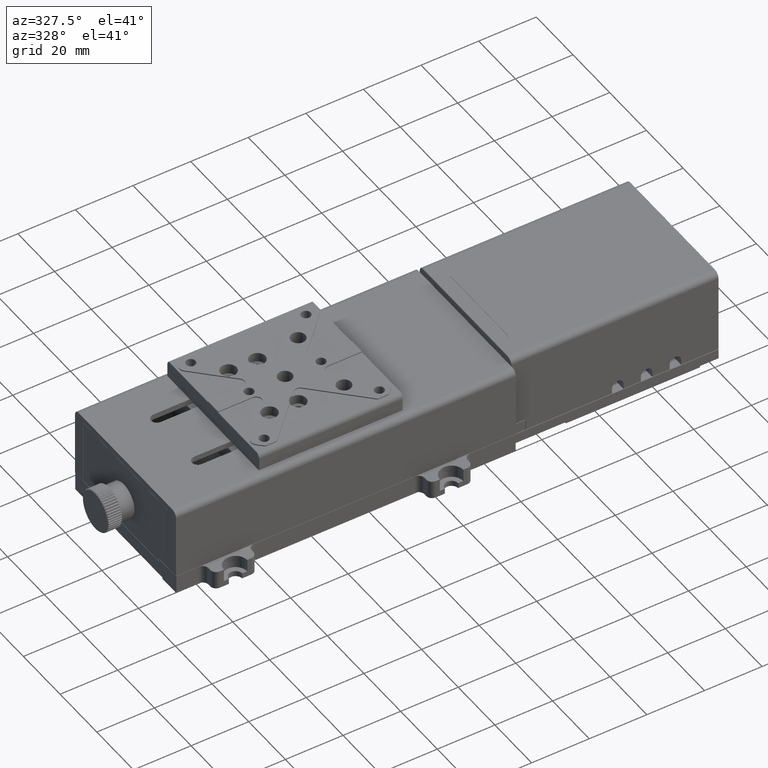
[diagram: clean part render]
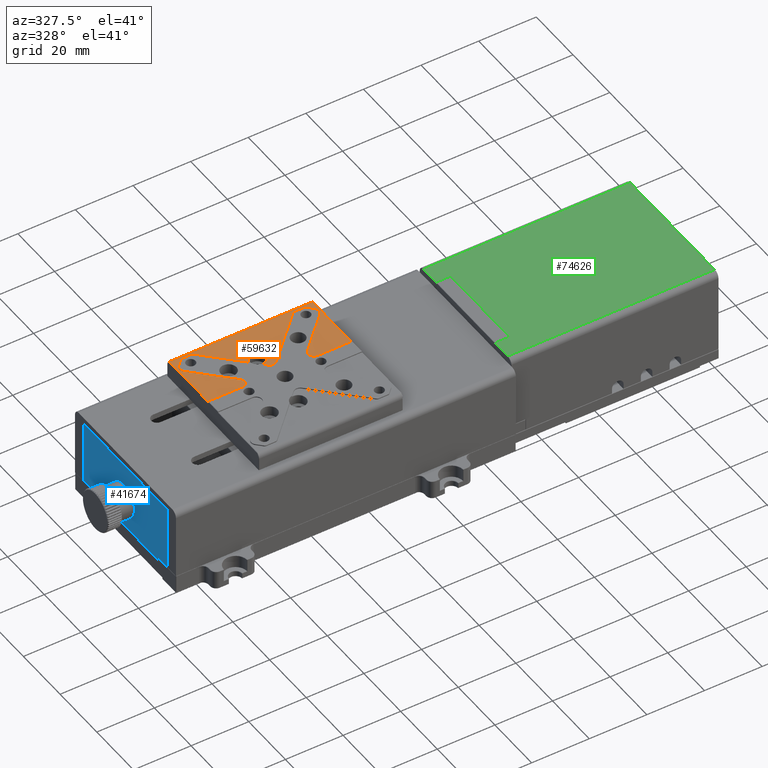
[diagram: same view with three faces highlighted in distinct colors, each labeled with its STEP entity id]
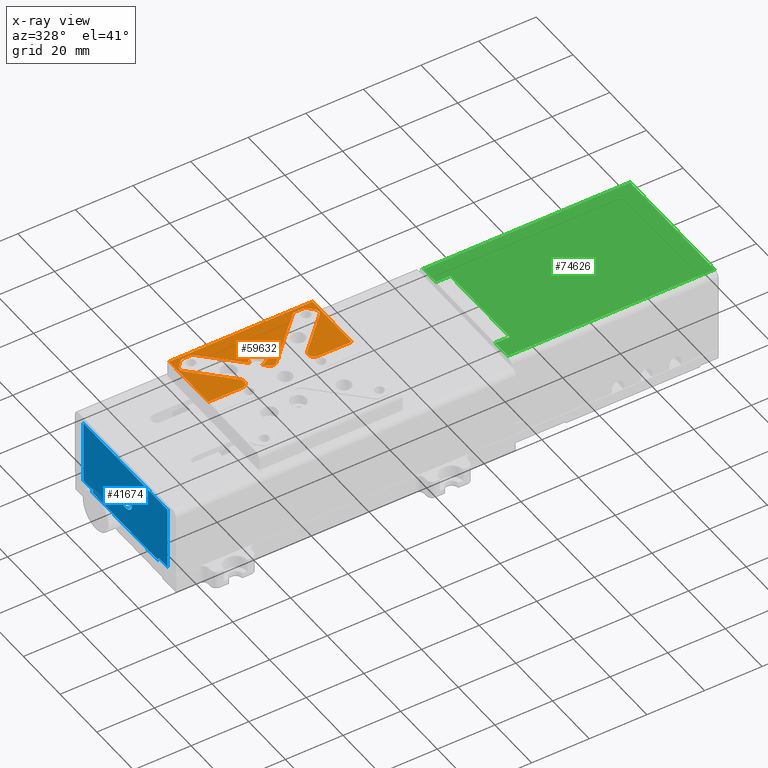
[diagram: x-ray of the same camera — body ghosted, the three highlighted faces saturated]
A machine part, auxiliary view with three faces highlighted in distinct colors.
The next image is the same camera in x-ray (body ghosted, the three faces saturated) — at least one of them is partly hidden behind the body in this view.
Their STEP definitions:

[orange] entity #59632 — the highlighted planar face has unit normal (0, 0, 1).
#13 = VERTEX_POINT ( 'NONE', #61773 ) ;
#254 = EDGE_CURVE ( 'NONE', #32556, #535, #66946, .T. ) ;
#363 = DIRECTION ( 'NONE',  ( 1.000000000000000000, 0.000000000000000000, 0.000000000000000000 ) ) ;
#535 = VERTEX_POINT ( 'NONE', #12200 ) ;
#1551 = EDGE_CURVE ( 'NONE', #535, #43986, #32637, .T. ) ;
#1763 = DIRECTION ( 'NONE',  ( 1.000000000000000000, 3.469446951953614189E-15, 0.000000000000000000 ) ) ;
#2162 = EDGE_CURVE ( 'NONE', #56444, #27756, #18939, .T. ) ;
#3137 = CARTESIAN_POINT ( 'NONE',  ( -61.47512690172040806, 46.50842696664169296, 32.69999999944575109 ) ) ;
#3236 = LINE ( 'NONE', #9735, #67392 ) ;
#3270 = DIRECTION ( 'NONE',  ( -2.775557561562890365E-16, 1.000000000000000000, 0.000000000000000000 ) ) ;
#3283 = ORIENTED_EDGE ( 'NONE', *, *, #33874, .T. ) ;
#4007 = LINE ( 'NONE', #20403, #14824 ) ;
#4023 = VERTEX_POINT ( 'NONE', #62094 ) ;
#4401 = EDGE_CURVE ( 'NONE', #72722, #48885, #58442, .T. ) ;
#4647 = DIRECTION ( 'NONE',  ( 1.000000000000000000, 0.000000000000000000, 0.000000000000000000 ) ) ;
#5609 = CARTESIAN_POINT ( 'NONE',  ( -16.51802012053379798, 46.96553374782829593, 32.69999999944575109 ) ) ;
#5983 = EDGE_CURVE ( 'NONE', #27218, #46094, #15421, .T. ) ;
#6828 = DIRECTION ( 'NONE',  ( -1.000000000000000000, 0.000000000000000000, 0.000000000000000000 ) ) ;
#6981 = VERTEX_POINT ( 'NONE', #24681 ) ;
#7345 = ORIENTED_EDGE ( 'NONE', *, *, #57116, .T. ) ;
#7606 = CARTESIAN_POINT ( 'NONE',  ( -11.93223368290686004, 46.96553374782829593, 32.69999999944575109 ) ) ;
#7733 = EDGE_CURVE ( 'NONE', #27756, #58400, #29007, .T. ) ;
#7833 = DIRECTION ( 'NONE',  ( 1.000000000000000000, 0.000000000000000000, 0.000000000000000000 ) ) ;
#7845 = PLANE ( 'NONE',  #38838 ) ;
#7867 = DIRECTION ( 'NONE',  ( 0.000000000000000000, 0.000000000000000000, -1.000000000000000000 ) ) ;
#8220 = DIRECTION ( 'NONE',  ( -0.7071067811865540120, 0.7071067811865410224, 0.000000000000000000 ) ) ;
#8703 = CARTESIAN_POINT ( 'NONE',  ( -45.38934046409369927, 30.42264052901525062, 32.69999999944575109 ) ) ;
#9002 = LINE ( 'NONE', #43234, #29584 ) ;
#9463 = VERTEX_POINT ( 'NONE', #80241 ) ;
#9517 = ORIENTED_EDGE ( 'NONE', *, *, #37796, .T. ) ;
#9735 = CARTESIAN_POINT ( 'NONE',  ( -36.47512690172035121, 71.50842696664180664, 32.69999999944575109 ) ) ;
#9782 = EDGE_CURVE ( 'NONE', #23003, #13330, #49859, .T. ) ;
#9907 = ORIENTED_EDGE ( 'NONE', *, *, #2162, .T. ) ;
#10266 = VERTEX_POINT ( 'NONE', #41877 ) ;
#10856 = VERTEX_POINT ( 'NONE', #82789 ) ;
#11076 = VERTEX_POINT ( 'NONE', #28997 ) ;
#11251 = CARTESIAN_POINT ( 'NONE',  ( -55.97512690172029437, 46.50842696664179954, 32.69999999944575109 ) ) ;
#12034 = CARTESIAN_POINT ( 'NONE',  ( -58.72512690172040095, 27.00842696664215126, 32.69999999944575109 ) ) ;
#12200 = CARTESIAN_POINT ( 'NONE',  ( -15.81091333934724830, 47.25842696664179954, 32.69999999944575109 ) ) ;
#12305 = VERTEX_POINT ( 'NONE', #18114 ) ;
#12412 = DIRECTION ( 'NONE',  ( 1.000000000000000000, 6.938893903907234689E-15, 0.000000000000000000 ) ) ;
#12637 = DIRECTION ( 'NONE',  ( 0.000000000000000000, 0.000000000000000000, 1.000000000000000000 ) ) ;
#12776 = CARTESIAN_POINT ( 'NONE',  ( -12.63934046409342038, 47.25842696664179954, 32.69999999944575109 ) ) ;
#13022 = VERTEX_POINT ( 'NONE', #47161 ) ;
#13330 = VERTEX_POINT ( 'NONE', #45786 ) ;
#13663 = DIRECTION ( 'NONE',  ( 0.000000000000000000, 0.000000000000000000, -1.000000000000000000 ) ) ;
#14300 = EDGE_CURVE ( 'NONE', #46094, #9463, #9002, .T. ) ;
#14435 = EDGE_CURVE ( 'NONE', #27138, #76380, #21193, .T. ) ;
#14824 = VECTOR ( 'NONE', #7833, 1000.000000000000000 ) ;
#15132 = AXIS2_PLACEMENT_3D ( 'NONE', #25644, #23194, #49647 ) ;
#15237 = DIRECTION ( 'NONE',  ( 1.000000000000000000, 0.000000000000000000, 0.000000000000000000 ) ) ;
#15397 = CARTESIAN_POINT ( 'NONE',  ( -32.31091333934710264, 31.17264052901499838, 32.69999999944575109 ) ) ;
#15415 = AXIS2_PLACEMENT_3D ( 'NONE', #79544, #13663, #40545 ) ;
#15421 = LINE ( 'NONE', #42697, #61613 ) ;
#16506 = EDGE_CURVE ( 'NONE', #4023, #13330, #79985, .T. ) ;
#17024 = CARTESIAN_POINT ( 'NONE',  ( -58.62512690172029295, 43.75842696664170006, 32.69999999944575109 ) ) ;
#17336 = AXIS2_PLACEMENT_3D ( 'NONE', #27385, #7867, #15237 ) ;
#17719 = DIRECTION ( 'NONE',  ( 1.000000000000000000, 0.000000000000000000, 0.000000000000000000 ) ) ;
#18096 = AXIS2_PLACEMENT_3D ( 'NONE', #65119, #65533, #59017 ) ;
#18114 = CARTESIAN_POINT ( 'NONE',  ( -57.31091333934720211, 42.34421340426859359, 32.69999999944575109 ) ) ;
#18397 = EDGE_CURVE ( 'NONE', #68459, #10856, #4007, .T. ) ;
#18541 = ORIENTED_EDGE ( 'NONE', *, *, #83983, .T. ) ;
#18939 = CIRCLE ( 'NONE', #60529, 2.750000000000002665 ) ;
#19560 = CIRCLE ( 'NONE', #15415, 2.000000000000001776 ) ;
#19832 = AXIS2_PLACEMENT_3D ( 'NONE', #38872, #44941, #4647 ) ;
#19942 = LINE ( 'NONE', #46389, #30465 ) ;
#20041 = CARTESIAN_POINT ( 'NONE',  ( -22.06091333934684684, 30.42264052901525062, 32.69999999944575109 ) ) ;
#20403 = CARTESIAN_POINT ( 'NONE',  ( -8.725126901720349437, 47.25842696664179954, 32.69999999944575109 ) ) ;
#21193 = CIRCLE ( 'NONE', #19832, 1.999999999999998224 ) ;
#21246 = ORIENTED_EDGE ( 'NONE', *, *, #64449, .F. ) ;
#21467 = ORIENTED_EDGE ( 'NONE', *, *, #18397, .T. ) ;
#21663 = CARTESIAN_POINT ( 'NONE',  ( -11.55355402646651974, 43.75842696664180664, 32.69999999944575109 ) ) ;
#22321 = VERTEX_POINT ( 'NONE', #8703 ) ;
#22596 = CARTESIAN_POINT ( 'NONE',  ( -33.47512690172035121, 35.40842696664179812, 32.69999999944575109 ) ) ;
#23003 = VERTEX_POINT ( 'NONE', #72257 ) ;
#23194 = DIRECTION ( 'NONE',  ( 0.000000000000000000, 0.000000000000000000, -1.000000000000000000 ) ) ;
#23260 = ORIENTED_EDGE ( 'NONE', *, *, #24549, .T. ) ;
#23518 = VECTOR ( 'NONE', #79138, 1000.000000000000000 ) ;
#24549 = EDGE_CURVE ( 'NONE', #13, #4023, #83335, .T. ) ;
#24678 = CARTESIAN_POINT ( 'NONE',  ( -58.72512690172040095, 27.00842696664215126, 32.69999999944575109 ) ) ;
#24681 = CARTESIAN_POINT ( 'NONE',  ( -38.94057637451610532, 34.97387643943775259, 32.69999999944575109 ) ) ;
#24790 = ORIENTED_EDGE ( 'NONE', *, *, #4401, .T. ) ;
#25644 = CARTESIAN_POINT ( 'NONE',  ( -36.22512690172035121, 35.40842696664179812, 32.69999999944575109 ) ) ;
#25876 = AXIS2_PLACEMENT_3D ( 'NONE', #78074, #76381, #43432 ) ;
#26044 = AXIS2_PLACEMENT_3D ( 'NONE', #78288, #40155, #12412 ) ;
#26915 = DIRECTION ( 'NONE',  ( 1.000000000000000000, 0.000000000000000000, 0.000000000000000000 ) ) ;
#26982 = ORIENTED_EDGE ( 'NONE', *, *, #53150, .T. ) ;
#27138 = VERTEX_POINT ( 'NONE', #20041 ) ;
#27218 = VERTEX_POINT ( 'NONE', #59930 ) ;
#27385 = CARTESIAN_POINT ( 'NONE',  ( -54.81091333934720211, 46.25842696664180664, 32.69999999944575109 ) ) ;
#27756 = VERTEX_POINT ( 'NONE', #22596 ) ;
#28160 = CARTESIAN_POINT ( 'NONE',  ( -8.825126901720350858, 43.75842696664180664, 32.69999999944575109 ) ) ;
#28855 = CIRCLE ( 'NONE', #26044, 0.9999999999999991118 ) ;
#28945 = VECTOR ( 'NONE', #41593, 1000.000000000000000 ) ;
#28997 = CARTESIAN_POINT ( 'NONE',  ( -57.31091333934730869, 45.17264052901479943, 32.69999999944575109 ) ) ;
#29007 = CIRCLE ( 'NONE', #15132, 2.750000000000002665 ) ;
#29584 = VECTOR ( 'NONE', #56660, 1000.000000000000000 ) ;
#29686 = DIRECTION ( 'NONE',  ( 0.7071067811865474617, -0.7071067811865474617, 0.000000000000000000 ) ) ;
#30037 = CARTESIAN_POINT ( 'NONE',  ( -35.13934046409325163, 31.17264052901499838, 32.69999999944575109 ) ) ;
#30465 = VECTOR ( 'NONE', #72816, 1000.000000000000114 ) ;
#30858 = VECTOR ( 'NONE', #363, 1000.000000000000000 ) ;
#31210 = DIRECTION ( 'NONE',  ( -0.7071067811865415775, -0.7071067811865535679, 0.000000000000000000 ) ) ;
#31238 = CARTESIAN_POINT ( 'NONE',  ( -36.47512690172035121, 27.00842696664174980, 32.69999999944575109 ) ) ;
#31673 = LINE ( 'NONE', #31238, #77680 ) ;
#32556 = VERTEX_POINT ( 'NONE', #5609 ) ;
#32637 = LINE ( 'NONE', #44363, #60640 ) ;
#32929 = CIRCLE ( 'NONE', #81338, 2.750000000000002665 ) ;
#33323 = CARTESIAN_POINT ( 'NONE',  ( -58.72512690172040095, 48.31199234192699521, 32.69999999944575109 ) ) ;
#33638 = CARTESIAN_POINT ( 'NONE',  ( -58.62512690172029295, 27.00842696664215126, 32.69999999944575109 ) ) ;
#33827 = CIRCLE ( 'NONE', #64252, 2.000000000000001776 ) ;
#33874 = EDGE_CURVE ( 'NONE', #6981, #56444, #32929, .T. ) ;
#33887 = DIRECTION ( 'NONE',  ( 0.000000000000000000, 0.000000000000000000, -1.000000000000000000 ) ) ;
#34191 = CARTESIAN_POINT ( 'NONE',  ( -36.65967742892429726, 32.69297749384600138, 32.69999999944575109 ) ) ;
#34312 = CARTESIAN_POINT ( 'NONE',  ( -58.72512690172040095, 49.25842696664179954, 32.69999999944575109 ) ) ;
#34576 = EDGE_CURVE ( 'NONE', #12305, #22321, #42560, .T. ) ;
#34664 = ORIENTED_EDGE ( 'NONE', *, *, #34576, .F. ) ;
#35543 = EDGE_CURVE ( 'NONE', #13022, #27138, #19942, .T. ) ;
#36873 = DIRECTION ( 'NONE',  ( 0.7071067811865474617, 0.7071067811865474617, 0.000000000000000000 ) ) ;
#37043 = EDGE_LOOP ( 'NONE', ( #23260, #49127, #56291, #72274, #34664, #26982, #21246, #68845, #21467, #9517, #85715, #3283, #9907, #83665, #48002, #57647, #18541, #83686, #73074, #46394, #73281, #24790, #7345, #77541, #65929, #37989, #52374, #54936, #80009 ) ) ;
#37120 = DIRECTION ( 'NONE',  ( 1.000000000000000000, 0.000000000000000000, 0.000000000000000000 ) ) ;
#37555 = CARTESIAN_POINT ( 'NONE',  ( -36.22512690172035121, 35.40842696664179812, 32.69999999944575109 ) ) ;
#37796 = EDGE_CURVE ( 'NONE', #10856, #10266, #42484, .T. ) ;
#37989 = ORIENTED_EDGE ( 'NONE', *, *, #41554, .F. ) ;
#38838 = AXIS2_PLACEMENT_3D ( 'NONE', #34312, #39102, #57106 ) ;
#38872 = CARTESIAN_POINT ( 'NONE',  ( -20.64669977697375103, 29.00842696664214770, 32.69999999944575109 ) ) ;
#39102 = DIRECTION ( 'NONE',  ( 0.000000000000000000, 0.000000000000000000, 1.000000000000000000 ) ) ;
#39607 = DIRECTION ( 'NONE',  ( 1.000000000000000000, 0.000000000000000000, 0.000000000000000000 ) ) ;
#40155 = DIRECTION ( 'NONE',  ( 0.000000000000000000, 0.000000000000000000, -1.000000000000000000 ) ) ;
#40545 = DIRECTION ( 'NONE',  ( 1.000000000000000000, 0.000000000000000000, 0.000000000000000000 ) ) ;
#41239 = EDGE_CURVE ( 'NONE', #6981, #10266, #74958, .T. ) ;
#41325 = DIRECTION ( 'NONE',  ( 0.000000000000000000, 0.000000000000000000, -1.000000000000000000 ) ) ;
#41554 = EDGE_CURVE ( 'NONE', #27218, #76380, #52776, .T. ) ;
#41593 = DIRECTION ( 'NONE',  ( -0.7071067811865540120, 0.7071067811865410224, 0.000000000000000000 ) ) ;
#41877 = CARTESIAN_POINT ( 'NONE',  ( -50.93223368290689734, 46.96553374782829593, 32.69999999944575109 ) ) ;
#42484 = CIRCLE ( 'NONE', #25876, 1.000000000000000888 ) ;
#42560 = LINE ( 'NONE', #3137, #56541 ) ;
#42697 = CARTESIAN_POINT ( 'NONE',  ( -8.825126901720350858, 43.75842696664180664, 32.69999999944575109 ) ) ;
#43234 = CARTESIAN_POINT ( 'NONE',  ( -8.825126901720350858, 48.31199234192699521, 32.69999999944575109 ) ) ;
#43432 = DIRECTION ( 'NONE',  ( 1.000000000000000000, 0.000000000000000000, 0.000000000000000000 ) ) ;
#43986 = VERTEX_POINT ( 'NONE', #12776 ) ;
#44363 = CARTESIAN_POINT ( 'NONE',  ( -8.725126901720349437, 47.25842696664179954, 32.69999999944575109 ) ) ;
#44567 = EDGE_CURVE ( 'NONE', #65985, #68459, #75443, .T. ) ;
#44637 = DIRECTION ( 'NONE',  ( -1.000000000000000000, 0.000000000000000000, 0.000000000000000000 ) ) ;
#44941 = DIRECTION ( 'NONE',  ( 0.000000000000000000, 0.000000000000000000, 1.000000000000000000 ) ) ;
#45786 = CARTESIAN_POINT ( 'NONE',  ( -58.62512690172029295, 27.00842696664215126, 32.69999999944575109 ) ) ;
#46094 = VERTEX_POINT ( 'NONE', #28160 ) ;
#46389 = CARTESIAN_POINT ( 'NONE',  ( -30.97512690172035121, 21.50842696664174980, 32.69999999944575109 ) ) ;
#46394 = ORIENTED_EDGE ( 'NONE', *, *, #48656, .T. ) ;
#47123 = CIRCLE ( 'NONE', #18096, 2.000000000000001776 ) ;
#47161 = CARTESIAN_POINT ( 'NONE',  ( -10.13934046409342038, 42.34421340426870017, 32.69999999944575109 ) ) ;
#47464 = EDGE_CURVE ( 'NONE', #67059, #72722, #3236, .T. ) ;
#48002 = ORIENTED_EDGE ( 'NONE', *, *, #52443, .F. ) ;
#48030 = CARTESIAN_POINT ( 'NONE',  ( -38.97512690172035121, 35.40842696664179812, 32.69999999944575109 ) ) ;
#48656 = EDGE_CURVE ( 'NONE', #43986, #67059, #28855, .T. ) ;
#48885 = VERTEX_POINT ( 'NONE', #83307 ) ;
#49127 = ORIENTED_EDGE ( 'NONE', *, *, #16506, .T. ) ;
#49647 = DIRECTION ( 'NONE',  ( 1.000000000000000000, 0.000000000000000000, 0.000000000000000000 ) ) ;
#49859 = LINE ( 'NONE', #24678, #58753 ) ;
#50539 = DIRECTION ( 'NONE',  ( 0.000000000000000000, 0.000000000000000000, -1.000000000000000000 ) ) ;
#52374 = ORIENTED_EDGE ( 'NONE', *, *, #5983, .T. ) ;
#52443 = EDGE_CURVE ( 'NONE', #55828, #58400, #55431, .T. ) ;
#52776 = LINE ( 'NONE', #12034, #85702 ) ;
#53150 = EDGE_CURVE ( 'NONE', #12305, #11076, #19560, .T. ) ;
#53360 = DIRECTION ( 'NONE',  ( 1.000000000000000000, 0.000000000000000000, 0.000000000000000000 ) ) ;
#54202 = DIRECTION ( 'NONE',  ( 0.000000000000000000, 0.000000000000000000, -1.000000000000000000 ) ) ;
#54936 = ORIENTED_EDGE ( 'NONE', *, *, #14300, .T. ) ;
#55431 = LINE ( 'NONE', #74522, #69305 ) ;
#55828 = VERTEX_POINT ( 'NONE', #30037 ) ;
#56291 = ORIENTED_EDGE ( 'NONE', *, *, #9782, .F. ) ;
#56444 = VERTEX_POINT ( 'NONE', #48030 ) ;
#56541 = VECTOR ( 'NONE', #62934, 1000.000000000000000 ) ;
#56660 = DIRECTION ( 'NONE',  ( -2.775557561562890365E-16, 1.000000000000000000, 0.000000000000000000 ) ) ;
#57106 = DIRECTION ( 'NONE',  ( 1.000000000000000000, 0.000000000000000000, 0.000000000000000000 ) ) ;
#57116 = EDGE_CURVE ( 'NONE', #48885, #13022, #66380, .T. ) ;
#57647 = ORIENTED_EDGE ( 'NONE', *, *, #62997, .T. ) ;
#58400 = VERTEX_POINT ( 'NONE', #34191 ) ;
#58442 = CIRCLE ( 'NONE', #64010, 2.000000000000000000 ) ;
#58753 = VECTOR ( 'NONE', #44637, 1000.000000000000000 ) ;
#59002 = CARTESIAN_POINT ( 'NONE',  ( -33.72512690172020200, 32.58685409138809774, 32.69999999944575109 ) ) ;
#59017 = DIRECTION ( 'NONE',  ( 1.000000000000000000, 0.000000000000000000, 0.000000000000000000 ) ) ;
#59312 = CARTESIAN_POINT ( 'NONE',  ( -11.55355402646651974, 43.75842696664180664, 32.69999999944575109 ) ) ;
#59519 = EDGE_CURVE ( 'NONE', #23003, #22321, #47123, .T. ) ;
#59632 = ADVANCED_FACE ( 'NONE', ( #67230 ), #7845, .T. ) ;
#59930 = CARTESIAN_POINT ( 'NONE',  ( -8.825126901720350858, 27.00842696664215126, 32.69999999944575109 ) ) ;
#60529 = AXIS2_PLACEMENT_3D ( 'NONE', #37555, #50539, #37120 ) ;
#60640 = VECTOR ( 'NONE', #84647, 1000.000000000000000 ) ;
#61613 = VECTOR ( 'NONE', #3270, 1000.000000000000000 ) ;
#61715 = EDGE_CURVE ( 'NONE', #13, #9463, #73612, .T. ) ;
#61773 = CARTESIAN_POINT ( 'NONE',  ( -58.62512690172029295, 48.31199234192699521, 32.69999999944575109 ) ) ;
#62094 = CARTESIAN_POINT ( 'NONE',  ( -58.62512690172029295, 43.75842696664170006, 32.69999999944575109 ) ) ;
#62233 = AXIS2_PLACEMENT_3D ( 'NONE', #59312, #64529, #17719 ) ;
#62256 = VERTEX_POINT ( 'NONE', #15397 ) ;
#62874 = VECTOR ( 'NONE', #31210, 1000.000000000000000 ) ;
#62934 = DIRECTION ( 'NONE',  ( 0.7071067811865535679, -0.7071067811865415775, 0.000000000000000000 ) ) ;
#62997 = EDGE_CURVE ( 'NONE', #55828, #62256, #33827, .T. ) ;
#64010 = AXIS2_PLACEMENT_3D ( 'NONE', #21663, #54202, #1763 ) ;
#64252 = AXIS2_PLACEMENT_3D ( 'NONE', #59002, #12637, #26915 ) ;
#64449 = EDGE_CURVE ( 'NONE', #65985, #11076, #64564, .T. ) ;
#64529 = DIRECTION ( 'NONE',  ( 0.000000000000000000, 0.000000000000000000, -1.000000000000000000 ) ) ;
#64564 = LINE ( 'NONE', #11251, #62874 ) ;
#65119 = CARTESIAN_POINT ( 'NONE',  ( -46.80355402646679863, 29.00842696664214770, 32.69999999944575109 ) ) ;
#65453 = CARTESIAN_POINT ( 'NONE',  ( -20.64669977697375103, 27.00842696664215126, 32.69999999944575109 ) ) ;
#65533 = DIRECTION ( 'NONE',  ( 0.000000000000000000, 0.000000000000000000, 1.000000000000000000 ) ) ;
#65929 = ORIENTED_EDGE ( 'NONE', *, *, #14435, .T. ) ;
#65985 = VERTEX_POINT ( 'NONE', #73909 ) ;
#66380 = CIRCLE ( 'NONE', #62233, 2.000000000000000000 ) ;
#66808 = CARTESIAN_POINT ( 'NONE',  ( -36.22512690172035121, 35.40842696664179812, 32.69999999944575109 ) ) ;
#66946 = CIRCLE ( 'NONE', #79446, 1.000000000000000888 ) ;
#67059 = VERTEX_POINT ( 'NONE', #7606 ) ;
#67230 = FACE_OUTER_BOUND ( 'NONE', #37043, .T. ) ;
#67392 = VECTOR ( 'NONE', #29686, 1000.000000000000114 ) ;
#68459 = VERTEX_POINT ( 'NONE', #85672 ) ;
#68845 = ORIENTED_EDGE ( 'NONE', *, *, #44567, .T. ) ;
#68866 = CARTESIAN_POINT ( 'NONE',  ( -55.97512690172040095, 52.00842696664180664, 32.69999999944575109 ) ) ;
#69305 = VECTOR ( 'NONE', #8220, 1000.000000000000000 ) ;
#69909 = DIRECTION ( 'NONE',  ( 1.224646799147351975E-16, -1.000000000000000000, 0.000000000000000000 ) ) ;
#72257 = CARTESIAN_POINT ( 'NONE',  ( -46.80355402646679863, 27.00842696664215126, 32.69999999944575109 ) ) ;
#72274 = ORIENTED_EDGE ( 'NONE', *, *, #59519, .T. ) ;
#72722 = VERTEX_POINT ( 'NONE', #78426 ) ;
#72816 = DIRECTION ( 'NONE',  ( -0.7071067811865474617, -0.7071067811865474617, 0.000000000000000000 ) ) ;
#73074 = ORIENTED_EDGE ( 'NONE', *, *, #1551, .T. ) ;
#73281 = ORIENTED_EDGE ( 'NONE', *, *, #47464, .T. ) ;
#73612 = LINE ( 'NONE', #33323, #30858 ) ;
#73909 = CARTESIAN_POINT ( 'NONE',  ( -55.51802012053379798, 46.96553374782829593, 32.69999999944575109 ) ) ;
#74522 = CARTESIAN_POINT ( 'NONE',  ( -55.97512690172040095, 52.00842696664180664, 32.69999999944575109 ) ) ;
#74958 = LINE ( 'NONE', #68866, #28945 ) ;
#75443 = CIRCLE ( 'NONE', #17336, 1.000000000000000888 ) ;
#76380 = VERTEX_POINT ( 'NONE', #65453 ) ;
#76381 = DIRECTION ( 'NONE',  ( 0.000000000000000000, 0.000000000000000000, -1.000000000000000000 ) ) ;
#77541 = ORIENTED_EDGE ( 'NONE', *, *, #35543, .T. ) ;
#77545 = VECTOR ( 'NONE', #69909, 1000.000000000000000 ) ;
#77680 = VECTOR ( 'NONE', #36873, 1000.000000000000114 ) ;
#78074 = CARTESIAN_POINT ( 'NONE',  ( -51.63934046409339373, 46.25842696664180664, 32.69999999944575109 ) ) ;
#78288 = CARTESIAN_POINT ( 'NONE',  ( -12.63934046409342038, 46.25842696664180664, 32.69999999944575109 ) ) ;
#78426 = CARTESIAN_POINT ( 'NONE',  ( -10.13934046409342038, 45.17264052901489890, 32.69999999944575109 ) ) ;
#79138 = DIRECTION ( 'NONE',  ( 1.224646799147351975E-16, -1.000000000000000000, 0.000000000000000000 ) ) ;
#79446 = AXIS2_PLACEMENT_3D ( 'NONE', #85532, #41325, #39607 ) ;
#79544 = CARTESIAN_POINT ( 'NONE',  ( -55.89669977697419512, 43.75842696664170006, 32.69999999944575109 ) ) ;
#79985 = LINE ( 'NONE', #33638, #23518 ) ;
#80009 = ORIENTED_EDGE ( 'NONE', *, *, #61715, .F. ) ;
#80241 = CARTESIAN_POINT ( 'NONE',  ( -8.825126901720350858, 48.31199234192699521, 32.69999999944575109 ) ) ;
#81338 = AXIS2_PLACEMENT_3D ( 'NONE', #66808, #33887, #53360 ) ;
#82789 = CARTESIAN_POINT ( 'NONE',  ( -51.63934046409339373, 47.25842696664179954, 32.69999999944575109 ) ) ;
#83307 = CARTESIAN_POINT ( 'NONE',  ( -9.553554026466519744, 43.75842696664180664, 32.69999999944575109 ) ) ;
#83335 = LINE ( 'NONE', #17024, #77545 ) ;
#83665 = ORIENTED_EDGE ( 'NONE', *, *, #7733, .T. ) ;
#83686 = ORIENTED_EDGE ( 'NONE', *, *, #254, .T. ) ;
#83983 = EDGE_CURVE ( 'NONE', #62256, #32556, #31673, .T. ) ;
#84647 = DIRECTION ( 'NONE',  ( 1.000000000000000000, 0.000000000000000000, 0.000000000000000000 ) ) ;
#85532 = CARTESIAN_POINT ( 'NONE',  ( -15.81091333934724830, 46.25842696664180664, 32.69999999944575109 ) ) ;
#85672 = CARTESIAN_POINT ( 'NONE',  ( -54.81091333934720211, 47.25842696664179954, 32.69999999944575109 ) ) ;
#85702 = VECTOR ( 'NONE', #6828, 1000.000000000000000 ) ;
#85715 = ORIENTED_EDGE ( 'NONE', *, *, #41239, .F. ) ;

[blue] entity #41674 — the highlighted planar face has unit normal (1, -0, -0).
#1550 = VERTEX_POINT ( 'NONE', #45642 ) ;
#1815 = CIRCLE ( 'NONE', #48877, 3.599999999999999201 ) ;
#1997 = CARTESIAN_POINT ( 'NONE',  ( -89.11011235955059817, 47.25842696629219830, 23.90000000000000213 ) ) ;
#2045 = PLANE ( 'NONE',  #30441 ) ;
#2101 = VECTOR ( 'NONE', #13822, 1000.000000000000000 ) ;
#2562 = ORIENTED_EDGE ( 'NONE', *, *, #62461, .T. ) ;
#4467 = DIRECTION ( 'NONE',  ( 0.000000000000000000, 1.000000000000000000, 0.000000000000000000 ) ) ;
#5930 = EDGE_CURVE ( 'NONE', #21778, #67677, #20302, .T. ) ;
#6421 = LINE ( 'NONE', #79243, #70902 ) ;
#7052 = CARTESIAN_POINT ( 'NONE',  ( -89.11011235955059817, 1.358426966292139992, 23.90000000000000213 ) ) ;
#7768 = DIRECTION ( 'NONE',  ( 4.783087833768289771E-17, -2.402136515349010067E-16, 1.000000000000000000 ) ) ;
#8094 = CARTESIAN_POINT ( 'NONE',  ( -89.11011235955059817, 6.358426966292149984, 1.599999999999965228 ) ) ;
#8454 = CARTESIAN_POINT ( 'NONE',  ( -89.11011235955059817, 24.25842696629214856, 11.50000000000000000 ) ) ;
#8681 = ORIENTED_EDGE ( 'NONE', *, *, #77522, .T. ) ;
#9049 = LINE ( 'NONE', #35090, #65859 ) ;
#9333 = VERTEX_POINT ( 'NONE', #84170 ) ;
#9649 = CARTESIAN_POINT ( 'NONE',  ( -89.11011235955059817, 47.15842696629220399, 1.600000000000000089 ) ) ;
#9866 = DIRECTION ( 'NONE',  ( 4.783087833768289771E-17, -3.626783314496365000E-16, 1.000000000000000000 ) ) ;
#11114 = DIRECTION ( 'NONE',  ( -2.689900184998399820E-32, -1.000000000000000000, -2.402136515349010067E-16 ) ) ;
#11284 = CARTESIAN_POINT ( 'NONE',  ( -89.11011235955059817, 42.15842696629214714, 1.600000000000000089 ) ) ;
#11379 = CARTESIAN_POINT ( 'NONE',  ( -89.11011235955059817, 24.25842696629214856, 11.50000000000000000 ) ) ;
#12097 = CARTESIAN_POINT ( 'NONE',  ( -89.11011235955059817, 47.15842696629220399, 1.499999999999970024 ) ) ;
#12294 = DIRECTION ( 'NONE',  ( -2.689900184998399820E-32, -1.000000000000000000, -2.402136515349010067E-16 ) ) ;
#12962 = EDGE_CURVE ( 'NONE', #39789, #57609, #6421, .T. ) ;
#13702 = ORIENTED_EDGE ( 'NONE', *, *, #53231, .T. ) ;
#13822 = DIRECTION ( 'NONE',  ( -4.783087833768289771E-17, 5.551744797478219635E-16, -1.000000000000000000 ) ) ;
#13991 = CIRCLE ( 'NONE', #38934, 3.599999999999999201 ) ;
#17444 = DIRECTION ( 'NONE',  ( 1.000000000000000000, 0.000000000000000000, -4.783087833768279910E-17 ) ) ;
#18502 = CARTESIAN_POINT ( 'NONE',  ( -89.11011235955059817, 47.15842696629220399, 23.90000000000000213 ) ) ;
#19071 = LINE ( 'NONE', #39037, #81857 ) ;
#20302 = LINE ( 'NONE', #12097, #2101 ) ;
#20779 = DIRECTION ( 'NONE',  ( -2.689900184998399820E-32, -1.000000000000000000, -2.402136515349010067E-16 ) ) ;
#21778 = VERTEX_POINT ( 'NONE', #18502 ) ;
#21948 = FACE_BOUND ( 'NONE', #78503, .T. ) ;
#23557 = DIRECTION ( 'NONE',  ( -4.783087833768279910E-17, 0.000000000000000000, -1.000000000000000000 ) ) ;
#26740 = VECTOR ( 'NONE', #11114, 1000.000000000000000 ) ;
#26785 = DIRECTION ( 'NONE',  ( -4.783087833768289771E-17, 2.402136515349010067E-16, -1.000000000000000000 ) ) ;
#27577 = LINE ( 'NONE', #1997, #67858 ) ;
#30441 = AXIS2_PLACEMENT_3D ( 'NONE', #48398, #74851, #23557 ) ;
#32139 = CARTESIAN_POINT ( 'NONE',  ( -89.11011235955059817, 6.358426966292149984, 0.5999999999999648947 ) ) ;
#32801 = EDGE_CURVE ( 'NONE', #67994, #64807, #74906, .T. ) ;
#34074 = CARTESIAN_POINT ( 'NONE',  ( -89.11011235955059817, 42.15842696629214714, 0.5999999999999788836 ) ) ;
#34519 = DIRECTION ( 'NONE',  ( 2.689900184998399820E-32, 1.000000000000000000, 2.402136515349010067E-16 ) ) ;
#35090 = CARTESIAN_POINT ( 'NONE',  ( -89.11011235955059817, 6.358426966292149984, 25.00000000000000000 ) ) ;
#35454 = ORIENTED_EDGE ( 'NONE', *, *, #85297, .T. ) ;
#38934 = AXIS2_PLACEMENT_3D ( 'NONE', #8454, #40963, #67391 ) ;
#39037 = CARTESIAN_POINT ( 'NONE',  ( -89.11011235955059817, 1.258426966292146121, 1.599999999999970113 ) ) ;
#39789 = VERTEX_POINT ( 'NONE', #11284 ) ;
#40690 = VECTOR ( 'NONE', #12294, 1000.000000000000000 ) ;
#40963 = DIRECTION ( 'NONE',  ( 1.000000000000000000, 0.000000000000000000, -4.783087833768279910E-17 ) ) ;
#41427 = EDGE_LOOP ( 'NONE', ( #2562, #8681, #35454, #65589, #53648, #52827, #66458, #47236 ) ) ;
#41674 = ADVANCED_FACE ( 'NONE', ( #21948, #67489 ), #2045, .F. ) ;
#42369 = CARTESIAN_POINT ( 'NONE',  ( -89.11011235955059817, 1.358426966292139992, 24.00000000000000000 ) ) ;
#44055 = LINE ( 'NONE', #51431, #26740 ) ;
#45642 = CARTESIAN_POINT ( 'NONE',  ( -89.11011235955059817, 27.85842696629219972, 11.50000000000000000 ) ) ;
#46930 = VERTEX_POINT ( 'NONE', #32139 ) ;
#47236 = ORIENTED_EDGE ( 'NONE', *, *, #12962, .T. ) ;
#48398 = CARTESIAN_POINT ( 'NONE',  ( -89.11011235955059817, 0.2584269662921369615, 25.00000000000000000 ) ) ;
#48877 = AXIS2_PLACEMENT_3D ( 'NONE', #11379, #17444, #4467 ) ;
#51431 = CARTESIAN_POINT ( 'NONE',  ( -89.11011235955059817, 42.25842696629219830, 1.600000000000000089 ) ) ;
#52827 = ORIENTED_EDGE ( 'NONE', *, *, #5930, .T. ) ;
#53231 = EDGE_CURVE ( 'NONE', #1550, #9333, #13991, .T. ) ;
#53648 = ORIENTED_EDGE ( 'NONE', *, *, #58855, .T. ) ;
#54519 = CARTESIAN_POINT ( 'NONE',  ( -89.11011235955059817, 1.358426966292149984, 1.599999999999970113 ) ) ;
#57609 = VERTEX_POINT ( 'NONE', #34074 ) ;
#58855 = EDGE_CURVE ( 'NONE', #64807, #21778, #27577, .T. ) ;
#61955 = EDGE_CURVE ( 'NONE', #67677, #39789, #44055, .T. ) ;
#62461 = EDGE_CURVE ( 'NONE', #57609, #46930, #71265, .T. ) ;
#64762 = CARTESIAN_POINT ( 'NONE',  ( -89.11011235955059817, 0.2584269662921430122, 0.5999999999999688916 ) ) ;
#64807 = VERTEX_POINT ( 'NONE', #7052 ) ;
#65589 = ORIENTED_EDGE ( 'NONE', *, *, #32801, .T. ) ;
#65859 = VECTOR ( 'NONE', #7768, 1000.000000000000000 ) ;
#66304 = ORIENTED_EDGE ( 'NONE', *, *, #72301, .T. ) ;
#66458 = ORIENTED_EDGE ( 'NONE', *, *, #61955, .T. ) ;
#67391 = DIRECTION ( 'NONE',  ( 0.000000000000000000, 1.000000000000000000, 0.000000000000000000 ) ) ;
#67489 = FACE_OUTER_BOUND ( 'NONE', #41427, .T. ) ;
#67677 = VERTEX_POINT ( 'NONE', #9649 ) ;
#67858 = VECTOR ( 'NONE', #34519, 1000.000000000000000 ) ;
#67994 = VERTEX_POINT ( 'NONE', #54519 ) ;
#68736 = VECTOR ( 'NONE', #9866, 1000.000000000000000 ) ;
#69916 = VERTEX_POINT ( 'NONE', #8094 ) ;
#70902 = VECTOR ( 'NONE', #26785, 1000.000000000000000 ) ;
#71265 = LINE ( 'NONE', #64762, #40690 ) ;
#72301 = EDGE_CURVE ( 'NONE', #9333, #1550, #1815, .T. ) ;
#74851 = DIRECTION ( 'NONE',  ( 1.000000000000000000, -1.540937190836760032E-32, -4.783087833768279910E-17 ) ) ;
#74906 = LINE ( 'NONE', #42369, #68736 ) ;
#77522 = EDGE_CURVE ( 'NONE', #46930, #69916, #9049, .T. ) ;
#78503 = EDGE_LOOP ( 'NONE', ( #66304, #13702 ) ) ;
#79243 = CARTESIAN_POINT ( 'NONE',  ( -89.11011235955059817, 42.15842696629214714, 25.00000000000000000 ) ) ;
#81857 = VECTOR ( 'NONE', #20779, 1000.000000000000000 ) ;
#84170 = CARTESIAN_POINT ( 'NONE',  ( -89.11011235955059817, 20.65842696629215069, 11.50000000000000000 ) ) ;
#85297 = EDGE_CURVE ( 'NONE', #69916, #67994, #19071, .T. ) ;

[green] entity #74626 — the highlighted planar face has unit normal (0, 0, -1).
#542 = EDGE_CURVE ( 'NONE', #61813, #26849, #78504, .T. ) ;
#1046 = CARTESIAN_POINT ( 'NONE',  ( 100.7898876404493933, 47.25842696639259799, 28.50000000000000000 ) ) ;
#2093 = ORIENTED_EDGE ( 'NONE', *, *, #37843, .T. ) ;
#2877 = ORIENTED_EDGE ( 'NONE', *, *, #48833, .T. ) ;
#4507 = VERTEX_POINT ( 'NONE', #76279 ) ;
#6689 = VECTOR ( 'NONE', #34938, 1000.000000000000000 ) ;
#6978 = CARTESIAN_POINT ( 'NONE',  ( 28.88988764044945157, 1.258426966392540036, 28.50000000000000000 ) ) ;
#7298 = DIRECTION ( 'NONE',  ( -1.144237745221962045E-17, -1.000000000000000000, 0.000000000000000000 ) ) ;
#7712 = CARTESIAN_POINT ( 'NONE',  ( 28.98988764044944944, -0.7415730336074619622, 28.50000000000000000 ) ) ;
#9099 = CARTESIAN_POINT ( 'NONE',  ( 100.7898876404493933, -0.7415730336074780604, 28.50000000000000000 ) ) ;
#10255 = CARTESIAN_POINT ( 'NONE',  ( 28.98988764044944944, 40.35842696639254967, 28.50000000000000000 ) ) ;
#11344 = VECTOR ( 'NONE', #56627, 1000.000000000000000 ) ;
#12180 = LINE ( 'NONE', #6978, #28636 ) ;
#13026 = LINE ( 'NONE', #78914, #82851 ) ;
#13223 = ORIENTED_EDGE ( 'NONE', *, *, #81714, .T. ) ;
#15091 = VERTEX_POINT ( 'NONE', #48236 ) ;
#15611 = LINE ( 'NONE', #9099, #49975 ) ;
#17600 = CARTESIAN_POINT ( 'NONE',  ( 28.88988764044945157, 8.158426966392537949, 28.50000000000000000 ) ) ;
#17668 = VECTOR ( 'NONE', #7298, 1000.000000000000000 ) ;
#20347 = EDGE_CURVE ( 'NONE', #56576, #81215, #38973, .T. ) ;
#25669 = CARTESIAN_POINT ( 'NONE',  ( 28.88988764044945157, -0.7415730336074619622, 28.50000000000000000 ) ) ;
#26849 = VERTEX_POINT ( 'NONE', #60132 ) ;
#28624 = DIRECTION ( 'NONE',  ( -1.110223024625155924E-16, 1.000000000000000000, 0.000000000000000000 ) ) ;
#28636 = VECTOR ( 'NONE', #58579, 1000.000000000000000 ) ;
#31358 = DIRECTION ( 'NONE',  ( 0.000000000000000000, -1.000000000000000000, 0.000000000000000000 ) ) ;
#32776 = DIRECTION ( 'NONE',  ( 2.465475740232035111E-16, -1.000000000000000000, 0.000000000000000000 ) ) ;
#34385 = ORIENTED_EDGE ( 'NONE', *, *, #60785, .T. ) ;
#34562 = PLANE ( 'NONE',  #73942 ) ;
#34938 = DIRECTION ( 'NONE',  ( -1.144237745221962045E-17, -1.000000000000000000, 0.000000000000000000 ) ) ;
#35171 = ORIENTED_EDGE ( 'NONE', *, *, #542, .T. ) ;
#37284 = VECTOR ( 'NONE', #32776, 1000.000000000000000 ) ;
#37843 = EDGE_CURVE ( 'NONE', #81215, #51853, #12180, .T. ) ;
#38973 = LINE ( 'NONE', #7712, #17668 ) ;
#42867 = VERTEX_POINT ( 'NONE', #1046 ) ;
#43494 = VECTOR ( 'NONE', #44733, 1000.000000000000000 ) ;
#44733 = DIRECTION ( 'NONE',  ( 1.000000000000000000, -2.220446049250315053E-16, 0.000000000000000000 ) ) ;
#45108 = DIRECTION ( 'NONE',  ( -1.000000000000000000, 2.220446049250315053E-16, 0.000000000000000000 ) ) ;
#48236 = CARTESIAN_POINT ( 'NONE',  ( 28.98988764044944944, 47.25842696639259799, 28.50000000000000000 ) ) ;
#48833 = EDGE_CURVE ( 'NONE', #15091, #61813, #68285, .T. ) ;
#49670 = FACE_OUTER_BOUND ( 'NONE', #51096, .T. ) ;
#49975 = VECTOR ( 'NONE', #28624, 1000.000000000000000 ) ;
#51096 = EDGE_LOOP ( 'NONE', ( #34385, #67257, #2093, #64382, #13223, #2877, #35171, #51636 ) ) ;
#51636 = ORIENTED_EDGE ( 'NONE', *, *, #67131, .T. ) ;
#51853 = VERTEX_POINT ( 'NONE', #69200 ) ;
#54418 = CARTESIAN_POINT ( 'NONE',  ( 28.98988764044944944, -0.7415730336074619622, 28.50000000000000000 ) ) ;
#56576 = VERTEX_POINT ( 'NONE', #76196 ) ;
#56627 = DIRECTION ( 'NONE',  ( -1.000000000000000000, 2.220446049250315053E-16, 0.000000000000000000 ) ) ;
#57065 = LINE ( 'NONE', #17600, #11344 ) ;
#58018 = EDGE_CURVE ( 'NONE', #51853, #42867, #15611, .T. ) ;
#58579 = DIRECTION ( 'NONE',  ( 1.000000000000000000, -2.220446049250315053E-16, 0.000000000000000000 ) ) ;
#60132 = CARTESIAN_POINT ( 'NONE',  ( 33.98988764044944588, 40.35842696639254967, 28.50000000000000000 ) ) ;
#60785 = EDGE_CURVE ( 'NONE', #4507, #56576, #57065, .T. ) ;
#61813 = VERTEX_POINT ( 'NONE', #10255 ) ;
#64382 = ORIENTED_EDGE ( 'NONE', *, *, #58018, .T. ) ;
#65158 = DIRECTION ( 'NONE',  ( 0.000000000000000000, 0.000000000000000000, -1.000000000000000000 ) ) ;
#65716 = LINE ( 'NONE', #66577, #37284 ) ;
#66577 = CARTESIAN_POINT ( 'NONE',  ( 33.98988764044944588, -0.7415730336074619622, 28.50000000000000000 ) ) ;
#66871 = CARTESIAN_POINT ( 'NONE',  ( 28.98988764044944944, 1.258426966392540036, 28.50000000000000000 ) ) ;
#67131 = EDGE_CURVE ( 'NONE', #26849, #4507, #65716, .T. ) ;
#67257 = ORIENTED_EDGE ( 'NONE', *, *, #20347, .T. ) ;
#68285 = LINE ( 'NONE', #54418, #6689 ) ;
#69200 = CARTESIAN_POINT ( 'NONE',  ( 100.7898876404493933, 1.258426966392523827, 28.50000000000000000 ) ) ;
#73942 = AXIS2_PLACEMENT_3D ( 'NONE', #25669, #65158, #31358 ) ;
#74626 = ADVANCED_FACE ( 'NONE', ( #49670 ), #34562, .F. ) ;
#76196 = CARTESIAN_POINT ( 'NONE',  ( 28.98988764044944944, 8.158426966392537949, 28.50000000000000000 ) ) ;
#76279 = CARTESIAN_POINT ( 'NONE',  ( 33.98988764044944588, 8.158426966392537949, 28.50000000000000000 ) ) ;
#78504 = LINE ( 'NONE', #83729, #43494 ) ;
#78914 = CARTESIAN_POINT ( 'NONE',  ( 28.88988764044945157, 47.25842696639259799, 28.50000000000000000 ) ) ;
#81215 = VERTEX_POINT ( 'NONE', #66871 ) ;
#81714 = EDGE_CURVE ( 'NONE', #42867, #15091, #13026, .T. ) ;
#82851 = VECTOR ( 'NONE', #45108, 1000.000000000000000 ) ;
#83729 = CARTESIAN_POINT ( 'NONE',  ( 28.88988764044945157, 40.35842696639254967, 28.50000000000000000 ) ) ;